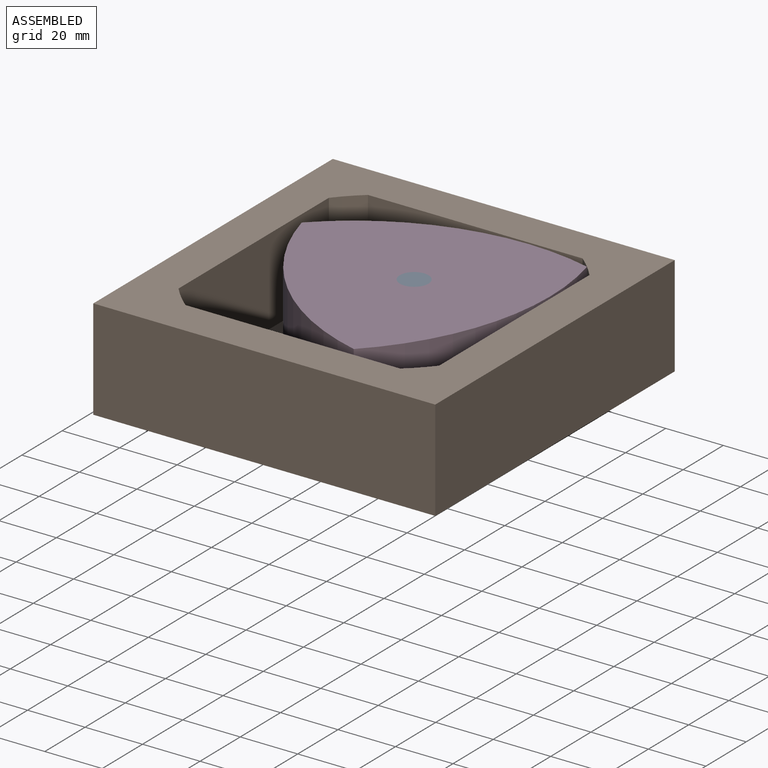
[diagram: assembled view]
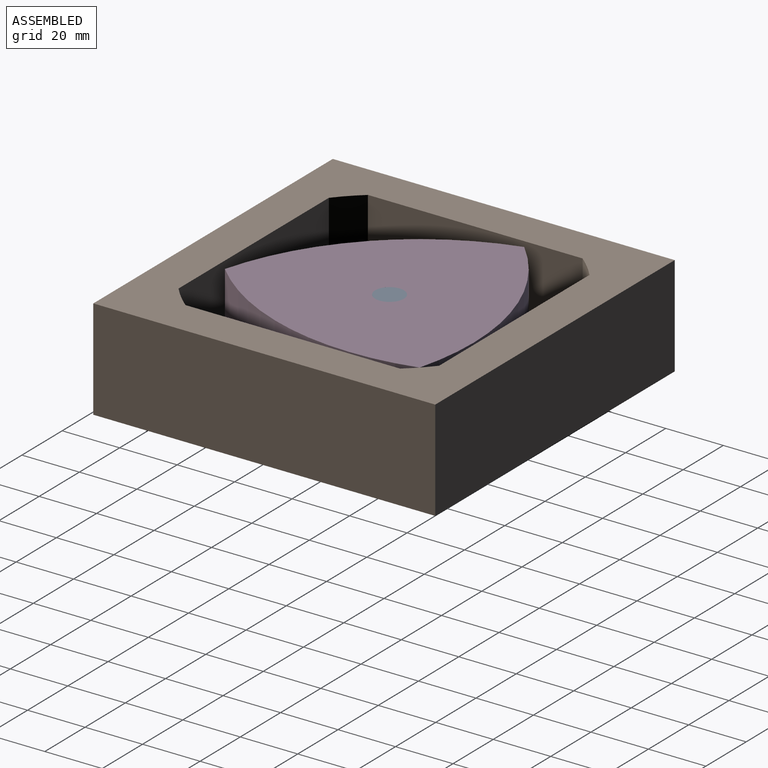
[diagram: assembled view, second angle]
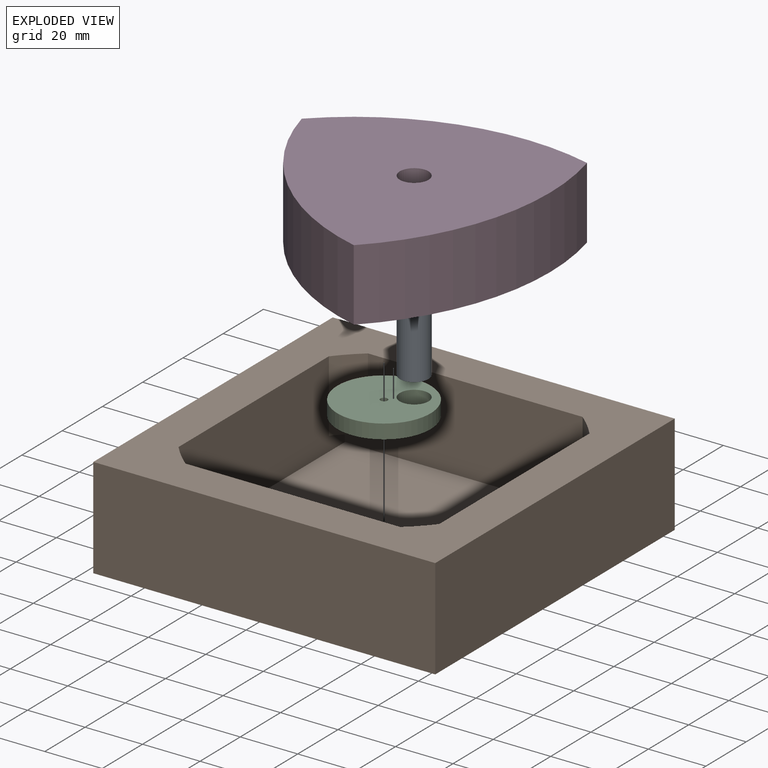
[diagram: exploded view]
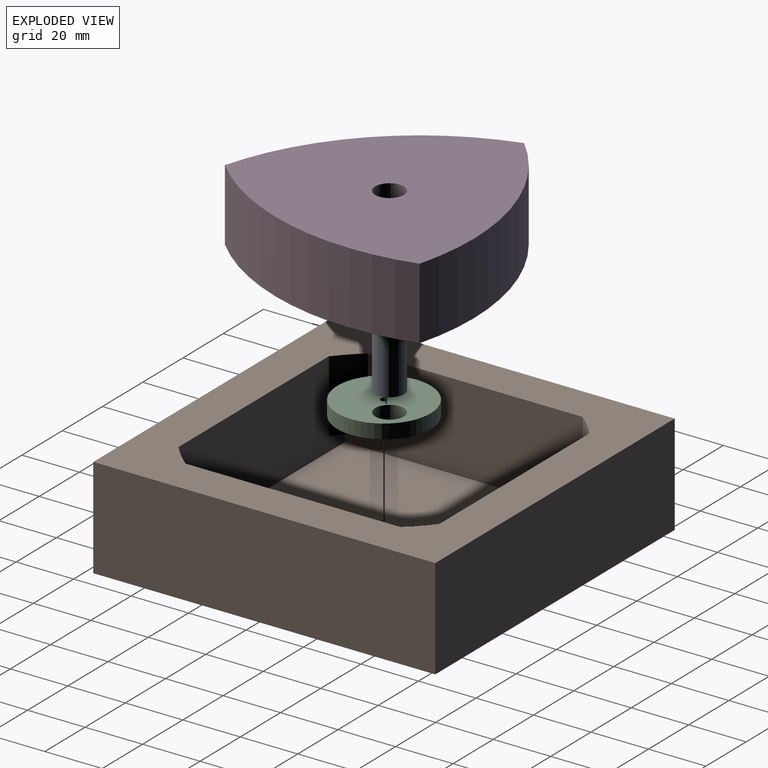
[diagram: exploded view, second angle]
ASSEMBLY  parts=4 mates=3
PART A: 3 faces, bbox 10x10x30 mm
  f0: cylinder r=5mm len=30mm, axis (0,0,-1), area 942.5mm2, adj f1,f2
  f1: plane 10x10mm, normal (0,0,1), area 78.5mm2, adj f0
  f2: plane 10x10mm, normal (0,0,-1), area 78.5mm2, adj f0
PART B: 20 faces, bbox 119x119x35 mm
  f0: plane 90.69x30mm, normal (0,1,0), area 2320.6mm2, adj f4,f5,f6,f11,f16,f17,f18,f19
  f1: plane 90.69x30mm, normal (0,-1,0), area 2320.6mm2, adj f4,f5,f6,f11,f12,f13,f14,f15
  f2: cylinder r=1.24mm len=5mm, axis (0,0,1), area 39mm2, adj f3,f4
  f3: plane 118.97x118.97mm, normal (0,0,-1), area 14150mm2, adj f2,f7,f8,f9,f10
  f4: plane 90.69x90.69mm, normal (0,0,1), area 8219.8mm2, adj f0,f1,f2,f5,f6
  f5: plane 90.69x30mm, normal (-1,0,0), area 2320.6mm2, adj f0,f1,f4,f11,f12,f13,f16,f17
  f6: plane 90.69x30mm, normal (1,0,0), area 2320.6mm2, adj f0,f1,f4,f11,f14,f15,f18,f19
  f7: plane 118.97x35mm, normal (0,-1,0), area 4164.1mm2, adj f3,f8,f10,f11
  f8: plane 118.97x35mm, normal (1,0,0), area 4164.1mm2, adj f3,f7,f9,f11
  f9: plane 118.97x35mm, normal (0,1,0), area 4164.1mm2, adj f3,f8,f10,f11
  f10: plane 118.97x35mm, normal (-1,0,0), area 4164.1mm2, adj f3,f7,f9,f11
  f11: plane 118.97x118.97mm, normal (0,0,1), area 6050mm2, adj f0,f1,f5,f6,f7,f8,f9,f10
  f12: cylinder r=58.74mm len=25mm, axis (0,0,-1), area 283.4mm2, adj f1,f5,f11,f13
  f13: plane 8x8mm, normal (0,0,-1), area 30mm2, adj f1,f5,f12
  f14: cylinder r=58.74mm len=25mm, axis (0,0,-1), area 283.4mm2, adj f1,f6,f11,f15
  f15: plane 8x8mm, normal (0,0,-1), area 30mm2, adj f1,f6,f14
  f16: cylinder r=58.74mm len=25mm, axis (0,0,-1), area 283.4mm2, adj f0,f5,f11,f17
  f17: plane 8x8mm, normal (0,0,-1), area 30mm2, adj f0,f5,f16
  f18: cylinder r=58.74mm len=25mm, axis (0,0,-1), area 283.4mm2, adj f0,f6,f11,f19
  f19: plane 8x8mm, normal (0,0,-1), area 30mm2, adj f0,f6,f18
PART C: 5 faces, bbox 32.5x32.5x5 mm
  f0: cylinder r=1.24mm len=5mm, axis (0,0,1), area 39mm2, adj f3,f4
  f1: cylinder r=5mm len=10mm, axis (0,0,1), area 157.1mm2, adj f3,f4
  f2: cylinder r=16.24mm len=32.49mm, axis (0,0,1), area 510.3mm2, adj f3,f4
  f3: plane 32.49x32.49mm, normal (0,0,-1), area 745.4mm2, adj f0,f1,f2
  f4: plane 32.49x32.49mm, normal (0,0,1), area 745.4mm2, adj f0,f1,f2
PART D: 6 faces, bbox 86.6x86.6x25 mm
  f0: cylinder r=86.6mm len=75mm, axis (0,0,-1), area 2267.2mm2, adj f1,f2,f4,f5
  f1: cylinder r=86.6mm len=75mm, axis (0,0,-1), area 2267.2mm2, adj f0,f2,f4,f5
  f2: cylinder r=86.6mm len=86.6mm, axis (0,0,-1), area 2267.2mm2, adj f0,f1,f4,f5
  f3: cylinder r=5mm len=25mm, axis (0,0,-1), area 785.4mm2, adj f4,f5
  f4: plane 86.6x86.6mm, normal (0,0,1), area 5207.2mm2, adj f0,f1,f2,f3
  f5: plane 86.6x86.6mm, normal (0,0,-1), area 5207.2mm2, adj f0,f1,f2,f3
PLACE A rot(axis=(0,0,1),135.4deg) t=(6.14,6.23,10)mm
PLACE B t=(0,-8.74,10)mm
PLACE C rot(axis=(0,0,1),135.4deg) t=(6.14,6.23,10)mm
PLACE D rot(axis=(0,0,-1),45.1deg) t=(6.14,6.23,10)mm
MATE revolute D.f3 <-> A.f0  axis (0,0,1) through (6.14,6.23,35)mm
MATE fastened A.f0 <-> C.f1  axis (0,0,-1) through (6.14,6.23,5)mm
MATE revolute C.f0 <-> B.f2  axis (0,0,-1) through (0,0,5)mm
